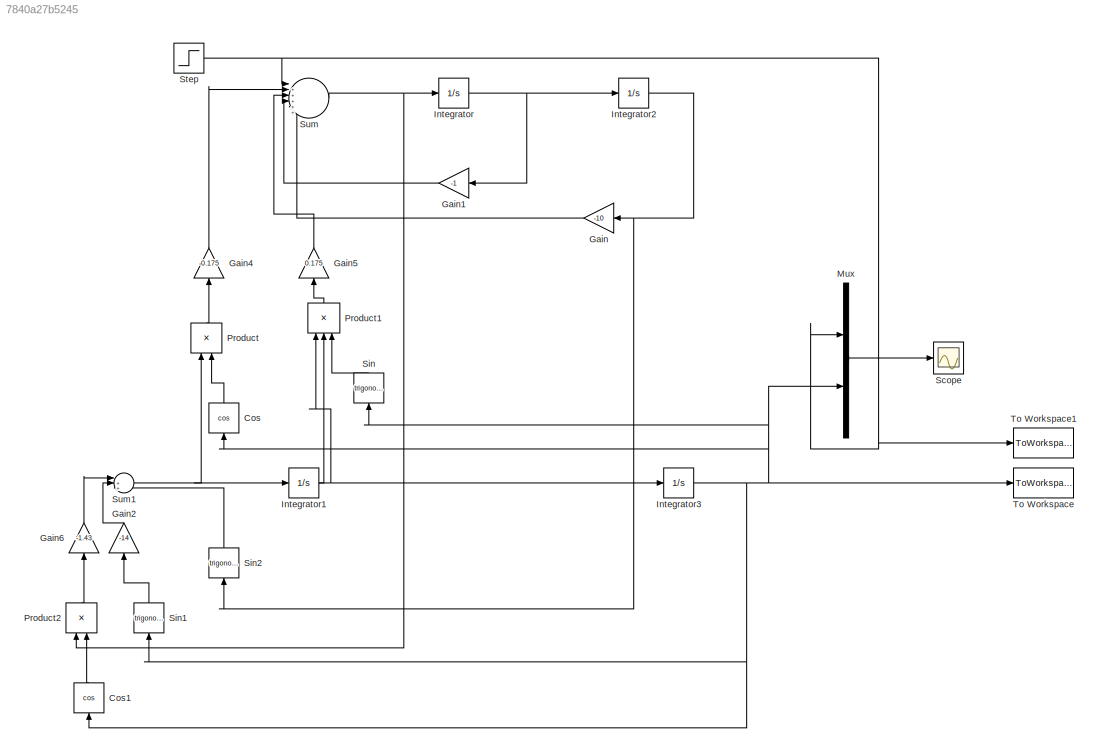
MODEL slx_7840a27b5245
KIND model
CONFIG AbsTol = auto
CONFIG EnableMultiTasking = off
CONFIG FixedStep = auto
CONFIG MaxStep = auto
CONFIG MinStep = auto
CONFIG RelTol = 1e-3
CONFIG SampleTimeConstraint = Unconstrained
CONFIG Solver = VariableStepAuto
CONFIG SolverName = VariableStepAuto
CONFIG StartTime = 0.0
CONFIG StopTime = 10
BLOCK [Trigonometry] Cos
  NameLocation = right
  Operator = cos
  Ports = [1, 1]
BLOCK [Trigonometry] Cos1
  NameLocation = right
  Operator = cos
  Ports = [1, 1]
BLOCK [Gain] Gain
  Gain = -10
  NameLocation = top
BLOCK [Gain] Gain1
  Gain = -1
  NameLocation = top
BLOCK [Gain] Gain2
  Gain = -14
  NameLocation = right
BLOCK [Gain] Gain4
  Gain = -0.175
  NameLocation = right
BLOCK [Gain] Gain5
  Gain = 0.175
  NameLocation = right
BLOCK [Gain] Gain6
  Gain = -1.43
  NameLocation = right
BLOCK [Integrator] Integrator
  Ports = [1, 1]
BLOCK [Integrator] Integrator1
  Ports = [1, 1]
BLOCK [Integrator] Integrator2
  Ports = [1, 1]
BLOCK [Integrator] Integrator3
  Ports = [1, 1]
BLOCK [Mux] Mux
  DisplayOption = bar
  Inputs = 2
  Ports = [2, 1]
BLOCK [Product] Product
  NameLocation = right
  Ports = [2, 1]
BLOCK [Product] Product1
  Inputs = 3
  NameLocation = right
  Ports = [3, 1]
BLOCK [Product] Product2
  NameLocation = right
  Ports = [2, 1]
BLOCK [Scope] Scope
  Floating = off
  NumInputPorts = 1
  Ports = [1]
  ScopeSpecificationString = Simulink.scopes.TimeScopeBlockCfg('CurrentConfiguration', extmgr.ConfigurationSet(extmgr.Configuration('Core','General UI',true),extmgr.Configuration('Core','Source UI',true),extmgr.Configuration('Sources','WiredSimulink',true),extmgr.Configuration('Visuals','Time Domain',true,'SerializedDisplays',{struct('MinYLimReal','-0.38966','MaxYLimReal','1.15441','YLabelReal','','MinYLimMag','0.00000','MaxY...<+1411ch>
BLOCK [Trigonometry] Sin
  NameLocation = right
  Ports = [1, 1]
BLOCK [Trigonometry] Sin1
  NameLocation = right
  Ports = [1, 1]
BLOCK [Trigonometry] Sin2
  NameLocation = right
  Ports = [1, 1]
BLOCK [Step] Step
  After = 0
  Before = 1
  SampleTime = 0.001
BLOCK [Sum] Sum
  Inputs = |+++++-
  Ports = [6, 1]
BLOCK [Sum] Sum1
  Inputs = |++-
  Ports = [3, 1]
BLOCK [ToWorkspace] To Workspace
  FixptAsFi = on
  MaxDataPoints = inf
  Ports = [1]
  SampleTime = -1
  VariableName = simout
BLOCK [ToWorkspace] To Workspace1
  FixptAsFi = on
  MaxDataPoints = inf
  Ports = [1]
  SampleTime = -1
  VariableName = simout1
LINE Cos1:1 -> Product2:2
LINE Cos:1 -> Product:2
LINE Gain1:1 -> Sum:4
LINE Gain2:1 -> Sum1:2
LINE Gain4:1 -> Sum:2
LINE Gain5:1 -> Sum:3
LINE Gain6:1 -> Sum1:1
LINE Gain:1 -> Sum:5
NET Integrator1:1 -> Integrator3:1, Product1:1, Product1:2
NET Integrator2:1 -> Gain:1, Sin2:1
NET Integrator3:1 -> Cos1:1, Cos:1, Mux:2, Sin1:1, Sin:1, To Workspace:1
NET Integrator:1 -> Gain1:1, Integrator2:1
LINE Mux:1 -> Scope:1
LINE Product1:1 -> Gain5:1
LINE Product2:1 -> Gain6:1
LINE Product:1 -> Gain4:1
LINE Sin1:1 -> Gain2:1
LINE Sin2:1 -> Sum1:3
LINE Sin:1 -> Product1:3
NET Step:1 -> Mux:1, Sum:1, To Workspace1:1
NET Sum1:1 -> Integrator1:1, Product:1
NET Sum:1 -> Integrator:1, Product2:1
note: NET lines group one-source signal fan-out (src -> all destinations, sorted); 1:1 wires keep LINE
